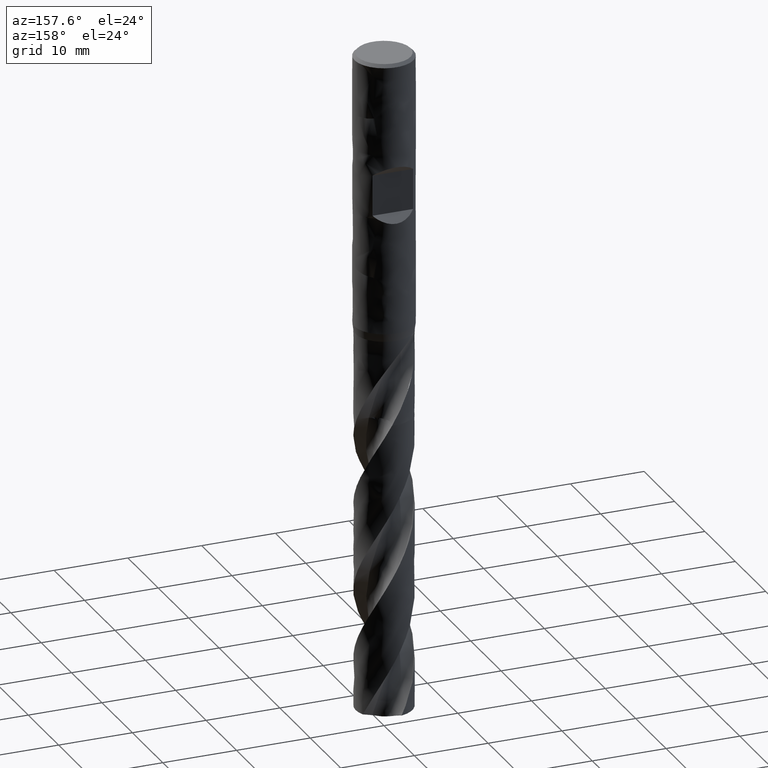
[diagram: clean part render]
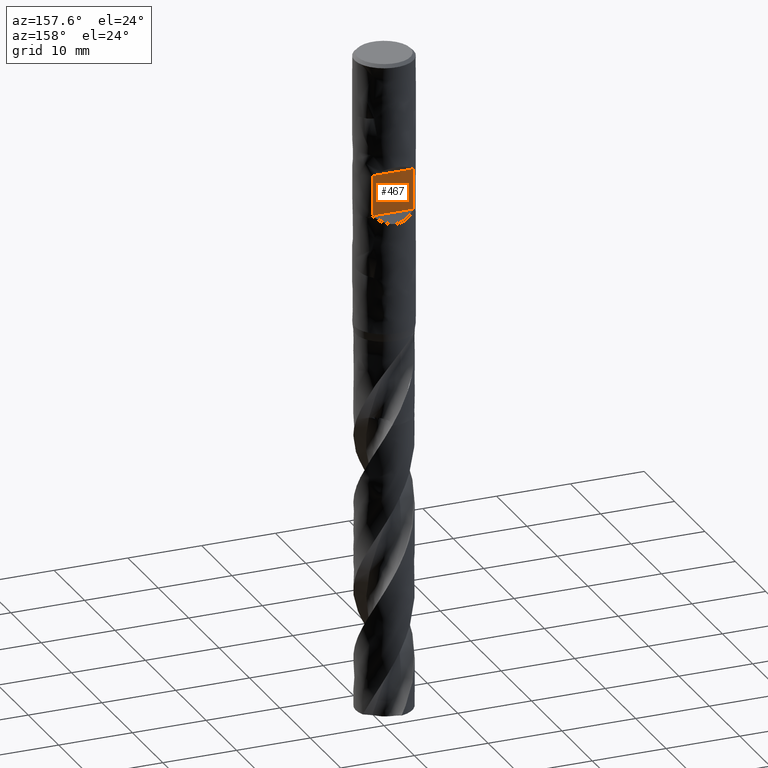
[diagram: same view with one face highlighted and labeled with its STEP entity id]
A machine part, auxiliary view. The second image highlights one B-rep face of the part: STEP entity #467.
In plain terms, the highlighted planar face has unit normal (0, 1, 0).
Its self-contained STEP definition (entity closure, byte-faithful):
#281 = VERTEX_POINT('', #282);
#282 = CARTESIAN_POINT('', (-2.75499546279118, 2.9, -15.25));
#283 = VERTEX_POINT('', #284);
#284 = CARTESIAN_POINT('', (2.75499546279118, 2.9, -15.25));
#357 = EDGE_CURVE('', #281, #358, #360, .T.);
#358 = VERTEX_POINT('', #359);
#359 = CARTESIAN_POINT('', (-2.75499546279118, 2.9, -20.75));
#360 = LINE('', #361, #362);
#361 = CARTESIAN_POINT('', (-2.75499546279118, 2.9, -15.25));
#362 = VECTOR('', #363, 5.5);
#363 = DIRECTION('', (0., 0., -5.5));
#366 = VERTEX_POINT('', #367);
#367 = CARTESIAN_POINT('', (2.75499546279118, 2.9, -20.75));
#443 = EDGE_CURVE('', #283, #366, #444, .T.);
#444 = LINE('', #445, #446);
#445 = CARTESIAN_POINT('', (2.75499546279118, 2.9, -15.25));
#446 = VECTOR('', #447, 5.5);
#447 = DIRECTION('', (0., 0., -5.5));
#467 = ADVANCED_FACE('', (#468), #484, .T.);
#468 = FACE_OUTER_BOUND('', #469, .T.);
#469 = EDGE_LOOP('', (#470, #471, #477, #478));
#470 = ORIENTED_EDGE('', *, *, #443, .T.);
#471 = ORIENTED_EDGE('', *, *, #472, .T.);
#472 = EDGE_CURVE('', #366, #358, #473, .T.);
#473 = LINE('', #474, #475);
#474 = CARTESIAN_POINT('', (2.75499546279118, 2.9, -20.75));
#475 = VECTOR('', #476, 5.50999092558236);
#476 = DIRECTION('', (-5.50999092558236, 4.44089209850063E-16, 0.));
#477 = ORIENTED_EDGE('', *, *, #357, .F.);
#478 = ORIENTED_EDGE('', *, *, #479, .F.);
#479 = EDGE_CURVE('', #283, #281, #480, .T.);
#480 = LINE('', #481, #482);
#481 = CARTESIAN_POINT('', (2.75499546279118, 2.9, -15.25));
#482 = VECTOR('', #483, 5.50999092558236);
#483 = DIRECTION('', (-5.50999092558236, 4.44089209850063E-16, 0.));
#484 = PLANE('', #485);
#485 = AXIS2_PLACEMENT_3D('', #486, #487, #488);
#486 = CARTESIAN_POINT('', (4., 2.9, -20.75));
#487 = DIRECTION('', (0., 1., 8.07434927000114E-17));
#488 = DIRECTION('', (-1., 0., 0.));